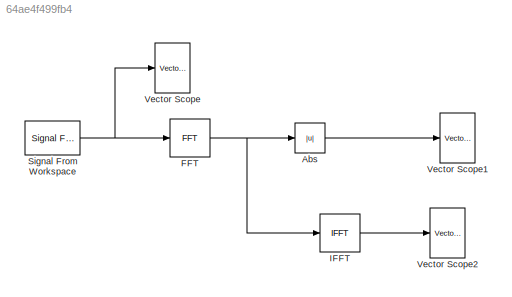
MODEL slx_64ae4f499fb4
KIND model
CONFIG AbsTol = auto
CONFIG FixedStep = auto
CONFIG MaxStep = auto
CONFIG MinStep = auto
CONFIG RelTol = 1e-3
CONFIG SampleTimeConstraint = Unconstrained
CONFIG Solver = VariableStepAuto
CONFIG SolverMode = Auto
CONFIG SolverName = VariableStepAuto
CONFIG StartTime = 0.0
CONFIG StopTime = 2
BLOCK [Abs] Abs
  SaturateOnIntegerOverflow = off
BLOCK [Reference] FFT  REF=dspxfrm3/FFT
  Ports = [1, 1]
  SourceBlock = dspxfrm3/FFT
  SourceType = FFT
BLOCK [Reference] IFFT  REF=dspxfrm3/IFFT
  Ports = [1, 1]
  SourceBlock = dspxfrm3/IFFT
  SourceType = IFFT
BLOCK [Reference] Signal From Workspace  REF=dspsrcs4/Signal From
Workspace
  Ports = [0, 1]
  SourceBlock = dspsrcs4/Signal From\nWorkspace
  SourceType = Signal From Workspace
BLOCK [Reference] Vector Scope  REF=dspsnks4/Vector
Scope
  Ports = [1]
  SourceBlock = dspsnks4/Vector\nScope
  SourceType = Vector Scope
BLOCK [Reference] Vector Scope1  REF=dspsnks4/Vector
Scope
  Ports = [1]
  SourceBlock = dspsnks4/Vector\nScope
  SourceType = Vector Scope
BLOCK [Reference] Vector Scope2  REF=dspsnks4/Vector
Scope
  Ports = [1]
  SourceBlock = dspsnks4/Vector\nScope
  SourceType = Vector Scope
LINE Abs:1 -> Vector Scope1:1
NET FFT:1 -> Abs:1, IFFT:1
LINE IFFT:1 -> Vector Scope2:1
NET Signal From Workspace:1 -> FFT:1, Vector Scope:1
note: NET lines group one-source signal fan-out (src -> all destinations, sorted); 1:1 wires keep LINE
